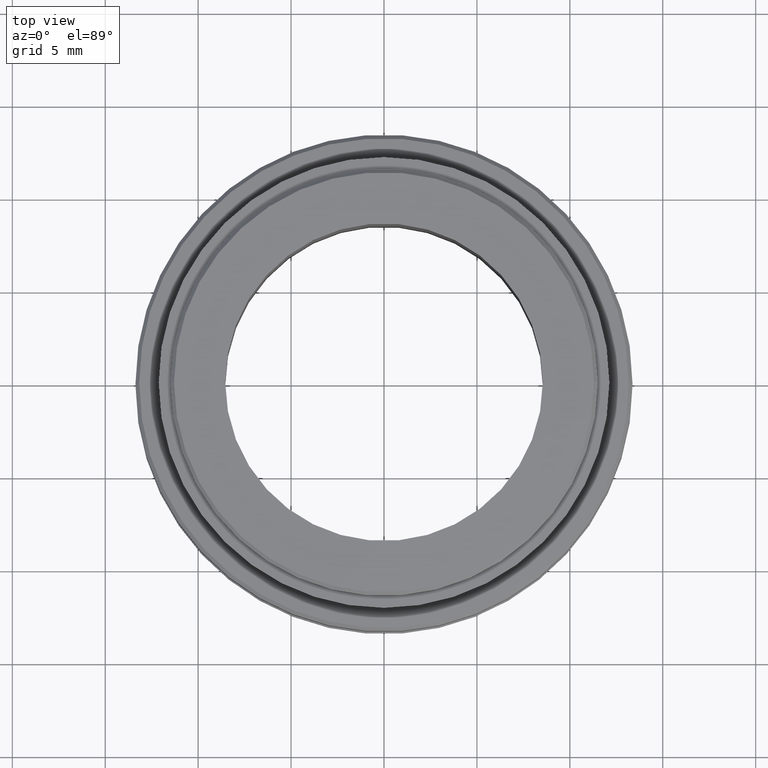
[diagram: clean part render]
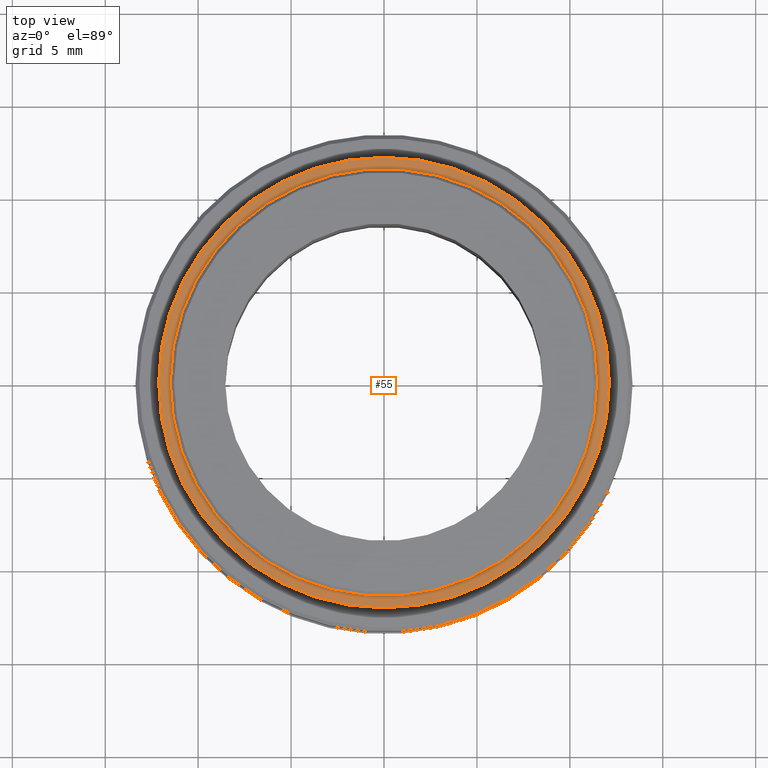
[diagram: same view with one face highlighted and labeled with its STEP entity id]
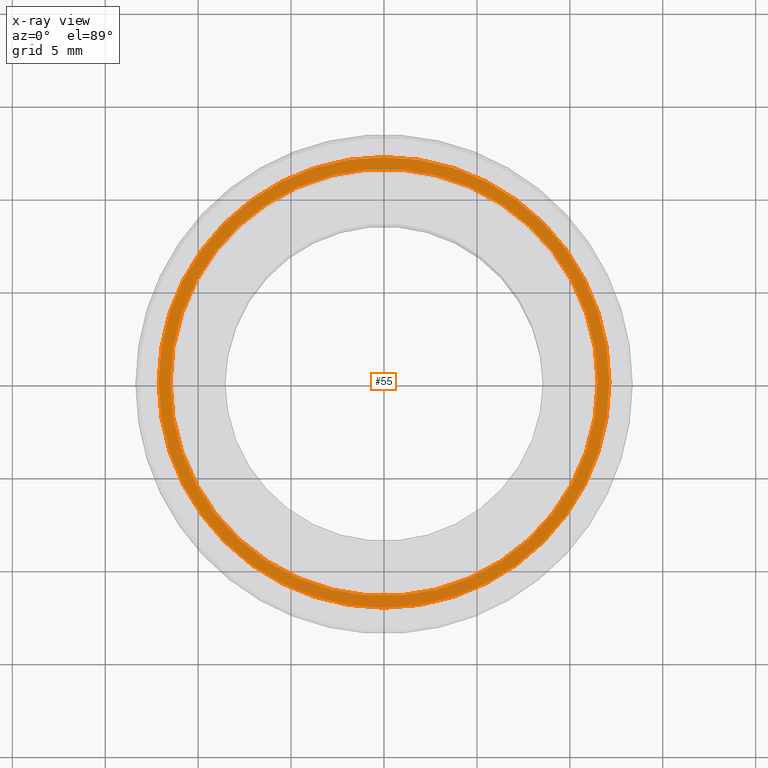
[diagram: x-ray of the same camera — body ghosted, the highlighted face saturated]
A machine part, top view. The second image highlights one B-rep face of the part: STEP entity #55.
The next image is the same camera in x-ray: the body ghosted, the highlighted face saturated — about 0% of this face is hidden behind the body in this view.
In plain terms, the highlighted planar face has unit normal (0, 0, 1).
Its self-contained STEP definition (entity closure, byte-faithful):
#7 = DIRECTION ( 'NONE',  ( 1.000000000000000000, 0.0000000000000000000, -0.0000000000000000000 ) ) ;
#24 = CIRCLE ( 'NONE', #462, 11.50000000000000000 ) ;
#25 = FACE_OUTER_BOUND ( 'NONE', #208, .T. ) ;
#55 = ADVANCED_FACE ( 'NONE', ( #723, #25 ), #209, .T. ) ;
#208 = EDGE_LOOP ( 'NONE', ( #352, #793 ) ) ;
#209 = PLANE ( 'NONE',  #558 ) ;
#210 = ORIENTED_EDGE ( 'NONE', *, *, #253, .F. ) ;
#229 = EDGE_CURVE ( 'NONE', #643, #623, #736, .T. ) ;
#253 = EDGE_CURVE ( 'NONE', #407, #781, #24, .T. ) ;
#254 = EDGE_CURVE ( 'NONE', #781, #407, #320, .T. ) ;
#261 = EDGE_LOOP ( 'NONE', ( #210, #760 ) ) ;
#292 = EDGE_CURVE ( 'NONE', #623, #643, #484, .T. ) ;
#320 = CIRCLE ( 'NONE', #471, 11.50000000000000000 ) ;
#352 = ORIENTED_EDGE ( 'NONE', *, *, #292, .T. ) ;
#391 = CARTESIAN_POINT ( 'NONE',  ( 11.50000000000000000, 1.408343819019456200E-015, 10.08400000000000000 ) ) ;
#407 = VERTEX_POINT ( 'NONE', #408 ) ;
#408 = CARTESIAN_POINT ( 'NONE',  ( -11.50000000000000000, 0.0000000000000000000, 10.08400000000000000 ) ) ;
#462 = AXIS2_PLACEMENT_3D ( 'NONE', #580, #609, #773 ) ;
#471 = AXIS2_PLACEMENT_3D ( 'NONE', #772, #659, #655 ) ;
#484 = CIRCLE ( 'NONE', #490, 12.12400000000000200 ) ;
#490 = AXIS2_PLACEMENT_3D ( 'NONE', #675, #681, #710 ) ;
#492 = AXIS2_PLACEMENT_3D ( 'NONE', #532, #554, #548 ) ;
#522 = CARTESIAN_POINT ( 'NONE',  ( 12.12400000000000200, 1.484761779286251400E-015, 10.08400000000000000 ) ) ;
#528 = CARTESIAN_POINT ( 'NONE',  ( -12.12400000000000200, 0.0000000000000000000, 10.08400000000000000 ) ) ;
#532 = CARTESIAN_POINT ( 'NONE',  ( 0.0000000000000000000, 0.0000000000000000000, 10.08400000000000000 ) ) ;
#548 = DIRECTION ( 'NONE',  ( 1.000000000000000000, 0.0000000000000000000, 0.0000000000000000000 ) ) ;
#554 = DIRECTION ( 'NONE',  ( 0.0000000000000000000, 0.0000000000000000000, 1.000000000000000000 ) ) ;
#558 = AXIS2_PLACEMENT_3D ( 'NONE', #613, #805, #7 ) ;
#580 = CARTESIAN_POINT ( 'NONE',  ( 0.0000000000000000000, 0.0000000000000000000, 10.08400000000000000 ) ) ;
#609 = DIRECTION ( 'NONE',  ( 0.0000000000000000000, 0.0000000000000000000, 1.000000000000000000 ) ) ;
#613 = CARTESIAN_POINT ( 'NONE',  ( 0.0000000000000000000, 0.0000000000000000000, 10.08400000000000000 ) ) ;
#623 = VERTEX_POINT ( 'NONE', #528 ) ;
#643 = VERTEX_POINT ( 'NONE', #522 ) ;
#655 = DIRECTION ( 'NONE',  ( 1.000000000000000000, 0.0000000000000000000, 0.0000000000000000000 ) ) ;
#659 = DIRECTION ( 'NONE',  ( 0.0000000000000000000, 0.0000000000000000000, 1.000000000000000000 ) ) ;
#675 = CARTESIAN_POINT ( 'NONE',  ( 0.0000000000000000000, 0.0000000000000000000, 10.08400000000000000 ) ) ;
#681 = DIRECTION ( 'NONE',  ( 0.0000000000000000000, 0.0000000000000000000, 1.000000000000000000 ) ) ;
#710 = DIRECTION ( 'NONE',  ( 1.000000000000000000, 0.0000000000000000000, 0.0000000000000000000 ) ) ;
#723 = FACE_BOUND ( 'NONE', #261, .T. ) ;
#736 = CIRCLE ( 'NONE', #492, 12.12400000000000200 ) ;
#760 = ORIENTED_EDGE ( 'NONE', *, *, #254, .F. ) ;
#772 = CARTESIAN_POINT ( 'NONE',  ( 0.0000000000000000000, 0.0000000000000000000, 10.08400000000000000 ) ) ;
#773 = DIRECTION ( 'NONE',  ( 1.000000000000000000, 0.0000000000000000000, 0.0000000000000000000 ) ) ;
#781 = VERTEX_POINT ( 'NONE', #391 ) ;
#793 = ORIENTED_EDGE ( 'NONE', *, *, #229, .T. ) ;
#805 = DIRECTION ( 'NONE',  ( 0.0000000000000000000, 0.0000000000000000000, 1.000000000000000000 ) ) ;